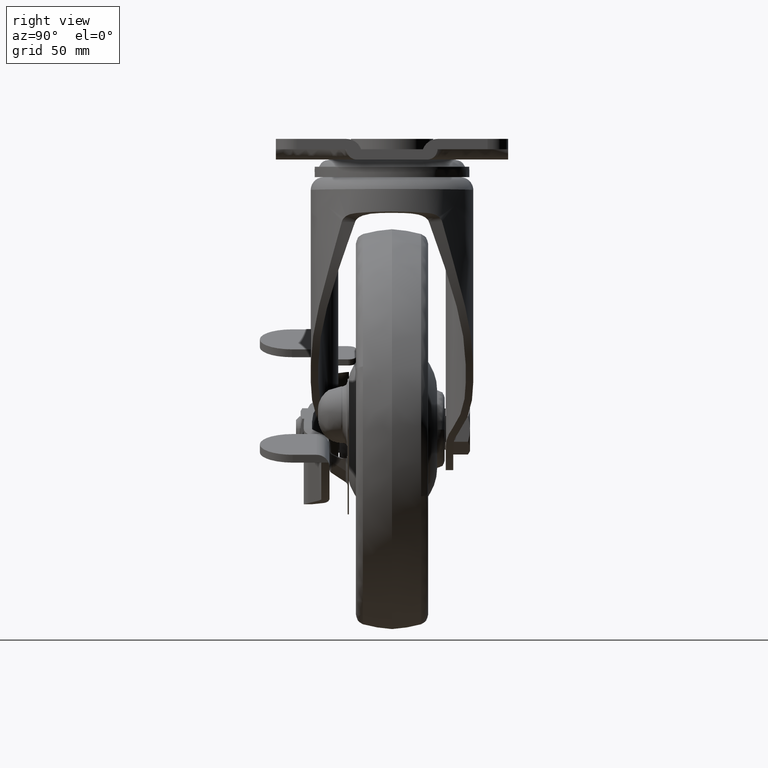
[diagram: clean part render]
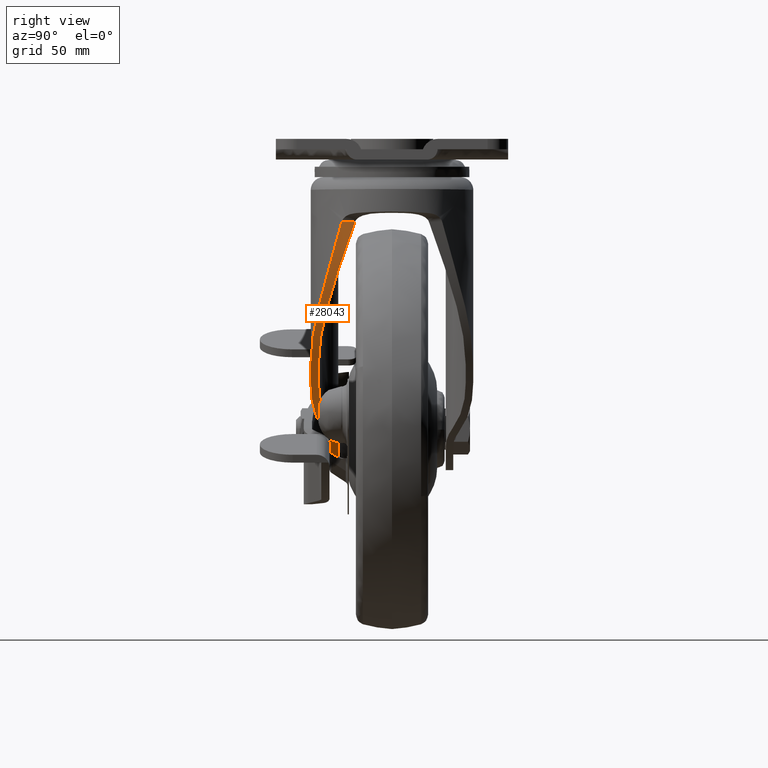
[diagram: same view with one face highlighted and labeled with its STEP entity id]
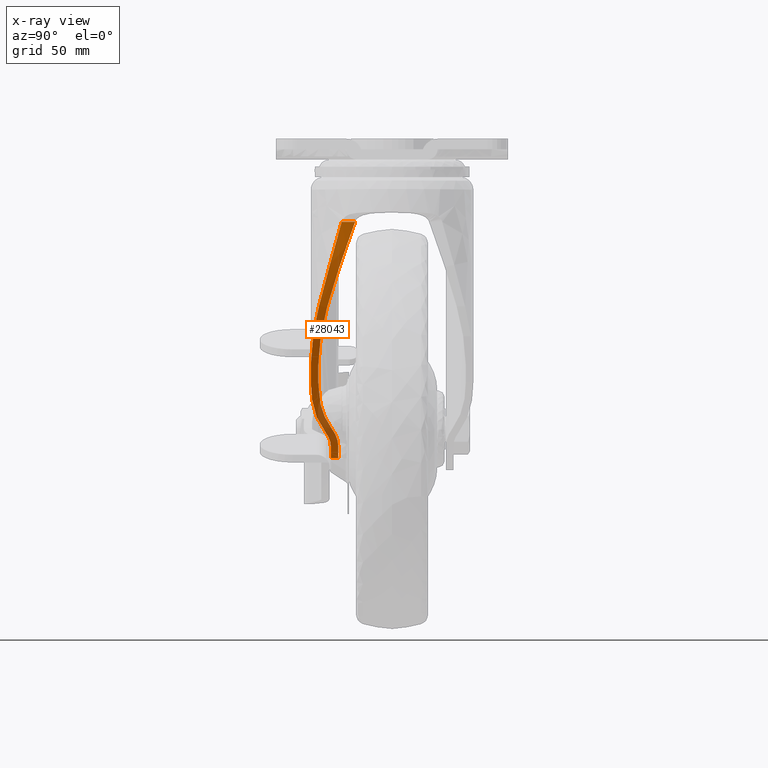
[diagram: x-ray of the same camera — body ghosted, the highlighted face saturated]
A machine part, right view. The second image highlights one B-rep face of the part: STEP entity #28043.
The next image is the same camera in x-ray: the body ghosted, the highlighted face saturated — about 13% of this face is hidden behind the body in this view.
In plain terms, the highlighted face is a freeform B-spline surface patch.
Its self-contained STEP definition (entity closure, byte-faithful):
#25845=CARTESIAN_POINT('',(-31.133920985200000,-20.819345999999900,-123.789671572339400));
#25846=VERTEX_POINT('',#25845);
#25860=CARTESIAN_POINT('',(-31.133920985200000,-23.719345999999799,-123.789671572339400));
#25861=VERTEX_POINT('',#25860);
#25862=CARTESIAN_POINT('',(-31.133920985200000,-20.819345999999900,-123.789671572339400));
#25863=CARTESIAN_POINT('',(-31.133920985200000,-23.719345999999799,-123.789671572339400));
#25864=QUASI_UNIFORM_CURVE('',1,(#25862,#25863),.UNSPECIFIED.,.F.,.U.);
#25865=EDGE_CURVE('',#25846,#25861,#25864,.T.);
#25994=CARTESIAN_POINT('',(-24.827289622573200,-20.819345999999900,-119.255180333829000));
#25995=VERTEX_POINT('',#25994);
#26001=CARTESIAN_POINT('',(-31.133920985200000,-20.819345999999900,-123.789671572339400));
#26002=CARTESIAN_POINT('',(-27.912673078144028,-20.819345999999907,-121.616907005724100));
#26003=CARTESIAN_POINT('',(-24.827289622573229,-20.819345999999900,-119.255180333829000));
#26011=(BOUNDED_CURVE()B_SPLINE_CURVE(2,(#26001,#26002,#26003),.UNSPECIFIED.,.F.,.U.)CURVE()GEOMETRIC_REPRESENTATION_ITEM()QUASI_UNIFORM_CURVE()RATIONAL_B_SPLINE_CURVE((1.0,0.999551427903588,1.0))REPRESENTATION_ITEM(''));
#26012=EDGE_CURVE('',#25846,#25995,#26011,.T.);
#26085=CARTESIAN_POINT('',(-16.323339793232051,-23.484443577011401,-112.149476155190200));
#26086=VERTEX_POINT('',#26085);
#26134=CARTESIAN_POINT('',(-0.000322000000108,-28.600000000000001,-94.213526390015005));
#26135=VERTEX_POINT('',#26134);
#26141=CARTESIAN_POINT('',(-0.000322000000102,-28.600000000000001,-94.213526390015005));
#26142=CARTESIAN_POINT('',(-1.263594402237346,-28.600000000000009,-95.893654138578981));
#26143=CARTESIAN_POINT('',(-2.557951124269482,-28.516660543651629,-97.530075499175766));
#26144=CARTESIAN_POINT('',(-4.541476058862347,-28.245057419634879,-99.918899303720750));
#26145=CARTESIAN_POINT('',(-5.209643515062325,-28.130025522447902,-100.704197981229900));
#26146=CARTESIAN_POINT('',(-6.559081354389048,-27.846329062770121,-102.252690428483800));
#26147=CARTESIAN_POINT('',(-7.240353238970359,-27.677674717627781,-103.015884920947600));
#26148=CARTESIAN_POINT('',(-8.615001494521671,-27.281111181965201,-104.519921626261390));
#26149=CARTESIAN_POINT('',(-9.308380075179267,-27.053217374967819,-105.260764971711690));
#26150=CARTESIAN_POINT('',(-10.706070310430420,-26.531179178127140,-106.719729657031910));
#26151=CARTESIAN_POINT('',(-11.410385386582560,-26.237059074961198,-107.437852843435610));
#26152=CARTESIAN_POINT('',(-12.296720815963671,-25.822410366202678,-108.320970970858800));
#26153=CARTESIAN_POINT('',(-12.474439439469810,-25.737044881376679,-108.497018747318510));
#26154=CARTESIAN_POINT('',(-12.829048746742490,-25.562137140252911,-108.846281365580400));
#26155=CARTESIAN_POINT('',(-13.360097257296360,-25.293344369283101,-109.366306491593510));
#26156=CARTESIAN_POINT('',(-13.888318119109680,-25.004940637953901,-109.874739591935590));
#26157=CARTESIAN_POINT('',(-14.940327268930110,-24.401028925279942,-110.876155685197900));
#26158=CARTESIAN_POINT('',(-15.635779951740879,-23.962336591157939,-111.523181597297100));
#26159=CARTESIAN_POINT('',(-16.323339793232030,-23.484443577011440,-112.149476155190200));
#26160=B_SPLINE_CURVE_WITH_KNOTS('',3,(#26141,#26142,#26143,#26144,#26145,#26146,#26147,#26148,#26149,#26150,#26151,#26152,#26153,#26154,#26155,#26156,#26157,#26158,#26159),.UNSPECIFIED.,.F.,.U.,(4,2,2,2,2,2,2,1,2,4),(0.0,0.250000000000001,0.375000000000001,0.500000000000002,0.625000000000002,0.750000000000002,0.781250000000002,0.812500000000001,0.875000000000001,1.0),.UNSPECIFIED.);
#26161=EDGE_CURVE('',#26135,#26086,#26160,.T.);
#26171=CARTESIAN_POINT('',(4.543606123696280,-28.600000000000001,-87.771468959762004));
#26172=VERTEX_POINT('',#26171);
#26173=CARTESIAN_POINT('',(-0.000322000000066,-28.600000000000001,-94.213526390015005));
#26174=CARTESIAN_POINT('',(2.369591905268129,-28.600000000000005,-91.061586945365548));
#26175=CARTESIAN_POINT('',(4.543606123696254,-28.600000000000001,-87.771468959761989));
#26183=(BOUNDED_CURVE()B_SPLINE_CURVE(2,(#26173,#26174,#26175),.UNSPECIFIED.,.F.,.U.)CURVE()GEOMETRIC_REPRESENTATION_ITEM()QUASI_UNIFORM_CURVE()RATIONAL_B_SPLINE_CURVE((1.0,0.999537951861546,1.0))REPRESENTATION_ITEM(''));
#26184=EDGE_CURVE('',#26135,#26172,#26183,.T.);
#26471=CARTESIAN_POINT('',(-24.827289622573200,-20.819345999999850,-119.255180333829000));
#26472=CARTESIAN_POINT('',(-24.060904776017068,-20.819345999999861,-118.668546108582310));
#26473=CARTESIAN_POINT('',(-23.308631364083791,-20.878095255800901,-118.079154068835090));
#26474=CARTESIAN_POINT('',(-21.830509603218079,-21.104683633942351,-116.894975791436290));
#26475=CARTESIAN_POINT('',(-21.104667925328719,-21.272551666681220,-116.300188533051400));
#26476=CARTESIAN_POINT('',(-20.035189763287882,-21.606046469374899,-115.404589099639000));
#26477=CARTESIAN_POINT('',(-19.681918737229250,-21.730887062438089,-115.105491775260110));
#26478=CARTESIAN_POINT('',(-19.156848456986548,-21.939231586958151,-114.656136817379210));
#26479=CARTESIAN_POINT('',(-18.982448719586451,-22.012284460696691,-114.506074785879310));
#26480=CARTESIAN_POINT('',(-18.636744200337571,-22.164905819796608,-114.207024479294400));
#26481=CARTESIAN_POINT('',(-18.465319825937009,-22.244513233386609,-114.057935627794510));
#26482=CARTESIAN_POINT('',(-17.615292247576409,-22.659118652549580,-113.314776464016900));
#26483=CARTESIAN_POINT('',(-16.957851332654130,-23.043422135986681,-112.727449300332910));
#26484=CARTESIAN_POINT('',(-16.323339793232051,-23.484443577011401,-112.149476155190200));
#26485=B_SPLINE_CURVE_WITH_KNOTS('',3,(#26471,#26472,#26473,#26474,#26475,#26476,#26477,#26478,#26479,#26480,#26481,#26482,#26483,#26484),.UNSPECIFIED.,.F.,.U.,(4,2,2,2,2,2,4),(0.0,0.250000000000001,0.500000000000002,0.625000000000004,0.687500000000004,0.750000000000004,1.0),.UNSPECIFIED.);
#26486=EDGE_CURVE('',#25995,#26086,#26485,.T.);
#27226=CARTESIAN_POINT('',(-17.978470968070301,-25.865733310344751,-113.631385386804000));
#27227=VERTEX_POINT('',#27226);
#27234=CARTESIAN_POINT('',(-24.827289622573200,-23.719345999999799,-119.255180333829000));
#27235=VERTEX_POINT('',#27234);
#27241=CARTESIAN_POINT('',(-17.978470968070301,-25.865733310344751,-113.631385386804000));
#27242=CARTESIAN_POINT('',(-18.492784647303679,-25.508256186822582,-114.083995341896990));
#27243=CARTESIAN_POINT('',(-19.022559665681300,-25.199267492922981,-114.542971615158090));
#27244=CARTESIAN_POINT('',(-20.111470239033171,-24.668192702297059,-115.470372466658300));
#27245=CARTESIAN_POINT('',(-20.670624023783319,-24.446196976782620,-115.938821494689900));
#27246=CARTESIAN_POINT('',(-21.531672322056391,-24.176844275568911,-116.647444046878500));
#27247=CARTESIAN_POINT('',(-21.822421191716991,-24.097719175137041,-116.884654114726000));
#27248=CARTESIAN_POINT('',(-22.264296951103638,-23.995271211268090,-117.241918900456500));
#27249=CARTESIAN_POINT('',(-22.412726532562200,-23.963800168864829,-117.361391567601900));
#27250=CARTESIAN_POINT('',(-22.710409205339449,-23.906565209572399,-117.599914869579100));
#27251=CARTESIAN_POINT('',(-22.859688376036260,-23.880786651096550,-117.718988161734600));
#27252=CARTESIAN_POINT('',(-23.608280678924839,-23.766058119196089,-118.313399598876400));
#27253=CARTESIAN_POINT('',(-24.214166216688920,-23.719345999999849,-118.785861067134410));
#27254=CARTESIAN_POINT('',(-24.827289622573200,-23.719345999999849,-119.255180333829000));
#27255=B_SPLINE_CURVE_WITH_KNOTS('',3,(#27241,#27242,#27243,#27244,#27245,#27246,#27247,#27248,#27249,#27250,#27251,#27252,#27253,#27254),.UNSPECIFIED.,.F.,.U.,(4,2,2,2,2,2,4),(0.0,0.250000000000003,0.500000000000005,0.625000000000006,0.687500000000006,0.750000000000006,1.0),.UNSPECIFIED.);
#27256=EDGE_CURVE('',#27227,#27235,#27255,.T.);
#27472=CARTESIAN_POINT('',(4.543606123696280,-31.500000000000000,-87.771468959762004));
#27473=VERTEX_POINT('',#27472);
#27479=CARTESIAN_POINT('',(25.052705313444751,-19.477051744839098,-32.169450416007962));
#27480=VERTEX_POINT('',#27479);
#27481=CARTESIAN_POINT('',(4.543606123696280,-31.500000000000000,-87.771468959762004));
#27482=CARTESIAN_POINT('',(5.254948055794428,-31.500000000000050,-86.694935575172522));
#27483=CARTESIAN_POINT('',(5.946996137642410,-31.470151272685090,-85.612686237214106));
#27484=CARTESIAN_POINT('',(7.293878548608634,-31.358416921511090,-83.436366480046303));
#27485=CARTESIAN_POINT('',(7.948710734689172,-31.276516135703460,-82.342297130092732));
#27486=CARTESIAN_POINT('',(9.859010995682676,-30.962167178059019,-79.041846704472064));
#27487=CARTESIAN_POINT('',(11.060375987853440,-30.661391463966570,-76.817225716122280));
#27488=CARTESIAN_POINT('',(13.324804151454730,-29.917107455997851,-72.316764392092296));
#27489=CARTESIAN_POINT('',(14.387844095891470,-29.473407729148288,-70.040939544121528));
#27490=CARTESIAN_POINT('',(15.881106934831600,-28.724120881111052,-66.586694588171483));
#27491=CARTESIAN_POINT('',(16.361959133330100,-28.460356120512849,-65.428524998824344));
#27492=CARTESIAN_POINT('',(17.058030386481480,-28.046371624230780,-63.680830933204177));
#27493=CARTESIAN_POINT('',(17.285906696589169,-27.905274191218449,-63.096359613628437));
#27494=CARTESIAN_POINT('',(17.731853022540619,-27.618347520823779,-61.927675410577400));
#27495=CARTESIAN_POINT('',(17.950112032874291,-27.472410080661231,-61.342997616331388));
#27496=CARTESIAN_POINT('',(19.018222985539829,-26.731558320405981,-58.417698916044991));
#27497=CARTESIAN_POINT('',(19.798655850533901,-26.103202040626130,-56.071363004832342));
#27498=CARTESIAN_POINT('',(21.219058895460751,-24.804630459047921,-51.360468664349320));
#27499=CARTESIAN_POINT('',(21.859013125357311,-24.134278544429371,-48.995942187824483));
#27500=CARTESIAN_POINT('',(23.002992555598219,-22.781924938504350,-44.241808984430691));
#27501=CARTESIAN_POINT('',(23.507018357109779,-22.099769629806790,-41.852242017633181));
#27502=CARTESIAN_POINT('',(24.162394744285798,-21.094407998270480,-38.242481297897633));
#27503=CARTESIAN_POINT('',(24.364054349184752,-20.762321668979940,-37.034973744409903));
#27504=CARTESIAN_POINT('',(24.733703417613981,-20.109579564323390,-34.610052331839157));
#27505=CARTESIAN_POINT('',(24.901693844666610,-19.788918389211592,-33.392640065066971));
#27506=CARTESIAN_POINT('',(25.052705313444800,-19.477051744839159,-32.169450416007940));
#27507=B_SPLINE_CURVE_WITH_KNOTS('',3,(#27481,#27482,#27483,#27484,#27485,#27486,#27487,#27488,#27489,#27490,#27491,#27492,#27493,#27494,#27495,#27496,#27497,#27498,#27499,#27500,#27501,#27502,#27503,#27504,#27505,#27506),.UNSPECIFIED.,.F.,.U.,(4,2,2,2,2,2,2,2,2,2,2,2,4),(0.0,0.062500000000001,0.125000000000001,0.250000000000002,0.375000000000004,0.437500000000004,0.468750000000004,0.500000000000003,0.625000000000003,0.750000000000002,0.875000000000001,0.937500000000001,1.0),.UNSPECIFIED.);
#27508=EDGE_CURVE('',#27473,#27480,#27507,.T.);
#27663=CARTESIAN_POINT('',(-0.000322000000094,-31.500000000000000,-94.213526390015005));
#27664=VERTEX_POINT('',#27663);
#27665=CARTESIAN_POINT('',(-0.000322000000083,-31.500000000000000,-94.213526390015005));
#27666=CARTESIAN_POINT('',(-0.685699272341282,-31.500000000000011,-95.125064844790231));
#27667=CARTESIAN_POINT('',(-1.383895911100618,-31.477670679269121,-96.028625073552988));
#27668=CARTESIAN_POINT('',(-2.450670682933491,-31.406572534615201,-97.372015111239804));
#27669=CARTESIAN_POINT('',(-2.809509633950556,-31.376598485103099,-97.817819906663019));
#27670=CARTESIAN_POINT('',(-3.352677439604157,-31.321635173168819,-98.483540080254144));
#27671=CARTESIAN_POINT('',(-3.534681226847432,-31.301630195691271,-98.705104854614206));
#27672=CARTESIAN_POINT('',(-3.899527492338245,-31.258278016882720,-99.146268612361553));
#27673=CARTESIAN_POINT('',(-4.082380974978027,-31.234932536155039,-99.365883759838141));
#27674=CARTESIAN_POINT('',(-4.998741408137085,-31.109697196115970,-100.459128321070910));
#27675=CARTESIAN_POINT('',(-5.738532619517497,-30.982311346188830,-101.318268502215010));
#27676=CARTESIAN_POINT('',(-7.229940605293851,-30.668604342032161,-103.005635141788700));
#27677=CARTESIAN_POINT('',(-7.981559482129178,-30.482291751777669,-103.833862444017000));
#27678=CARTESIAN_POINT('',(-9.494880002719105,-30.045359550513609,-105.459278960937400));
#27679=CARTESIAN_POINT('',(-10.256584609576180,-29.794752322812549,-106.256469469243200));
#27680=CARTESIAN_POINT('',(-11.788093494302510,-29.222707470260929,-107.819534046998900));
#27681=CARTESIAN_POINT('',(-12.557902159319520,-28.901288609521622,-108.585410174754600));
#27682=CARTESIAN_POINT('',(-14.103288069490761,-28.179489895869150,-110.085364811374700));
#27683=CARTESIAN_POINT('',(-14.878872176722370,-27.779140001777101,-110.819446742555400));
#27684=CARTESIAN_POINT('',(-15.850180813919181,-27.222823011974810,-111.716698495434300));
#27685=CARTESIAN_POINT('',(-16.141708182982889,-27.051726334061090,-111.984346442709390));
#27686=CARTESIAN_POINT('',(-16.433379718943812,-26.874107654227569,-112.249685279006800));
#27687=CARTESIAN_POINT('',(-16.627852617081849,-26.754219737887279,-112.426062522421600));
#27688=CARTESIAN_POINT('',(-16.725161815424482,-26.693499651887311,-112.514047522190690));
#27689=CARTESIAN_POINT('',(-17.210670332141479,-26.386833052811522,-112.951704019101300));
#27690=CARTESIAN_POINT('',(-17.596173038162711,-26.131452014376780,-113.294952863473990));
#27691=CARTESIAN_POINT('',(-17.978470968070329,-25.865733310344709,-113.631385386803900));
#27692=B_SPLINE_CURVE_WITH_KNOTS('',3,(#27665,#27666,#27667,#27668,#27669,#27670,#27671,#27672,#27673,#27674,#27675,#27676,#27677,#27678,#27679,#27680,#27681,#27682,#27683,#27684,#27685,#27686,#27687,#27688,#27689,#27690,#27691),.UNSPECIFIED.,.F.,.U.,(4,2,2,2,2,2,2,2,2,2,1,2,2,4),(0.0,0.125000000000001,0.187500000000001,0.218750000000002,0.250000000000002,0.375000000000001,0.500000000000001,0.625000000000001,0.750000000000000,0.875000000000000,0.906250000000000,0.921875000000000,0.937499999999999,1.0),.UNSPECIFIED.);
#27693=EDGE_CURVE('',#27664,#27227,#27692,.T.);
#27717=CARTESIAN_POINT('',(-31.133920985200000,-23.719345999999799,-123.789671572339400));
#27718=CARTESIAN_POINT('',(-27.912673078144028,-23.719345999999803,-121.616907005724100));
#27719=CARTESIAN_POINT('',(-24.827289622573229,-23.719345999999799,-119.255180333829000));
#27727=(BOUNDED_CURVE()B_SPLINE_CURVE(2,(#27717,#27718,#27719),.UNSPECIFIED.,.F.,.U.)CURVE()GEOMETRIC_REPRESENTATION_ITEM()QUASI_UNIFORM_CURVE()RATIONAL_B_SPLINE_CURVE((1.0,0.999551427903588,1.0))REPRESENTATION_ITEM(''));
#27728=EDGE_CURVE('',#25861,#27235,#27727,.T.);
#27858=CARTESIAN_POINT('',(-0.000322000000066,-31.500000000000000,-94.213526390015005));
#27859=CARTESIAN_POINT('',(2.369591905268129,-31.500000000000004,-91.061586945365548));
#27860=CARTESIAN_POINT('',(4.543606123696254,-31.500000000000000,-87.771468959761989));
#27868=(BOUNDED_CURVE()B_SPLINE_CURVE(2,(#27858,#27859,#27860),.UNSPECIFIED.,.F.,.U.)CURVE()GEOMETRIC_REPRESENTATION_ITEM()QUASI_UNIFORM_CURVE()RATIONAL_B_SPLINE_CURVE((1.0,0.999537951861546,1.0))REPRESENTATION_ITEM(''));
#27869=EDGE_CURVE('',#27664,#27473,#27868,.T.);
#27977=CARTESIAN_POINT('',(25.445922327807711,-13.890612544537710,-28.572376209019200));
#27978=CARTESIAN_POINT('',(25.445922327807711,-31.940234686386560,-28.572376209019200));
#27979=CARTESIAN_POINT('',(19.326575642422551,-13.890612544537703,-92.839388061329430));
#27980=CARTESIAN_POINT('',(19.326575642422551,-31.940234686386564,-92.839388061329430));
#27981=CARTESIAN_POINT('',(-35.640945284313844,-13.890612544537705,-126.695951080184540));
#27982=CARTESIAN_POINT('',(-35.640945284313844,-31.940234686386564,-126.695951080184540));
#27990=(BOUNDED_SURFACE()B_SPLINE_SURFACE(1,2,((#27977,#27979,#27981),(#27978,#27980,#27982)),.UNSPECIFIED.,.F.,.F.,.U.)B_SPLINE_SURFACE_WITH_KNOTS((2,2),(3,3),(0.0,18.049622141848861),(0.0,121.975839422211390),.UNSPECIFIED.)GEOMETRIC_REPRESENTATION_ITEM()RATIONAL_B_SPLINE_SURFACE(((1.0,0.893242567011920,0.995619660899587),(1.0,0.893242567011920,0.995619660899587)))REPRESENTATION_ITEM('')SURFACE());
#27991=ORIENTED_EDGE('',*,*,#26012,.T.);
#27992=ORIENTED_EDGE('',*,*,#26486,.T.);
#27993=ORIENTED_EDGE('',*,*,#26161,.F.);
#27994=ORIENTED_EDGE('',*,*,#26184,.T.);
#27995=CARTESIAN_POINT('',(25.052705313444651,-14.320109799548980,-32.169450416007962));
#27996=VERTEX_POINT('',#27995);
#27997=CARTESIAN_POINT('',(4.543606123696280,-28.600000000000001,-87.771468959762004));
#27998=CARTESIAN_POINT('',(5.260702918335048,-28.600000000000030,-86.686226259203409));
#27999=CARTESIAN_POINT('',(5.957951593890088,-28.566602784630032,-85.595540961979665));
#28000=CARTESIAN_POINT('',(7.314301415774443,-28.441647818957559,-83.402796998757594));
#28001=CARTESIAN_POINT('',(7.973399711076444,-28.350069911660249,-82.300739876984764));
#28002=CARTESIAN_POINT('',(9.254654416026719,-28.115601069113591,-80.084853122372465));
#28003=CARTESIAN_POINT('',(9.876808923116240,-27.972696764453410,-78.971024507638987));
#28004=CARTESIAN_POINT('',(11.085116646012080,-27.641186140625049,-76.731242656647339));
#28005=CARTESIAN_POINT('',(11.671268557547680,-27.452570525541059,-75.605290138131565));
#28006=CARTESIAN_POINT('',(13.376806030596731,-26.825228499006329,-72.208750131971357));
#28007=CARTESIAN_POINT('',(14.443352148643090,-26.325233302463669,-69.919487605905331));
#28008=CARTESIAN_POINT('',(15.690715360708900,-25.616993356615140,-67.025115340644092));
#28009=CARTESIAN_POINT('',(15.935890739169270,-25.471164491922480,-66.444600666869562));
#28010=CARTESIAN_POINT('',(16.297232530722049,-25.246456601549440,-65.571334901261423));
#28011=CARTESIAN_POINT('',(16.416631327025328,-25.170544058159791,-65.279774125619099));
#28012=CARTESIAN_POINT('',(16.652888399070520,-25.017047705224819,-64.696821352239070));
#28013=CARTESIAN_POINT('',(16.769797027640760,-24.939433345053668,-64.405309053565645));
#28014=CARTESIAN_POINT('',(17.348302348881031,-24.547178493394519,-62.947535766663080));
#28015=CARTESIAN_POINT('',(17.791796655291598,-24.220004756921369,-61.780637092406003));
#28016=CARTESIAN_POINT('',(19.066442981973701,-23.203638346596769,-58.276726148847118));
#28017=CARTESIAN_POINT('',(19.841864015167889,-22.479678799040560,-55.936500973560349));
#28018=CARTESIAN_POINT('',(21.252227960586030,-20.963688164085521,-51.241549690805243));
#28019=CARTESIAN_POINT('',(21.887147746990131,-20.171509761683499,-48.886865739120182));
#28020=CARTESIAN_POINT('',(23.021530658815159,-18.542661979676950,-44.156594584283113));
#28021=CARTESIAN_POINT('',(23.520988494321681,-17.705773109592389,-41.781077826582511));
#28022=CARTESIAN_POINT('',(24.170339349573830,-16.438015004202690,-38.195731198217160));
#28023=CARTESIAN_POINT('',(24.370129932369458,-16.013410048860852,-36.996914758119772));
#28024=CARTESIAN_POINT('',(24.736424058078271,-15.164821215660799,-34.590363880633333));
#28025=CARTESIAN_POINT('',(24.902928845856689,-14.740816519984421,-33.382636581989743));
#28026=CARTESIAN_POINT('',(25.052705313444701,-14.320109799549130,-32.169450416007969));
#28027=B_SPLINE_CURVE_WITH_KNOTS('',3,(#27997,#27998,#27999,#28000,#28001,#28002,#28003,#28004,#28005,#28006,#28007,#28008,#28009,#28010,#28011,#28012,#28013,#28014,#28015,#28016,#28017,#28018,#28019,#28020,#28021,#28022,#28023,#28024,#28025,#28026),.UNSPECIFIED.,.F.,.U.,(4,2,2,2,2,2,2,2,2,2,2,2,2,2,4),(0.0,0.062500000000000,0.125000000000001,0.187500000000001,0.250000000000002,0.375000000000003,0.406250000000003,0.421875000000004,0.437500000000004,0.500000000000003,0.625000000000002,0.750000000000002,0.875000000000001,0.937500000000000,1.0),.UNSPECIFIED.);
#28028=EDGE_CURVE('',#26172,#27996,#28027,.T.);
#28029=ORIENTED_EDGE('',*,*,#28028,.T.);
#28030=CARTESIAN_POINT('',(25.052705313444651,-14.320109799548980,-32.169450416007962));
#28031=CARTESIAN_POINT('',(25.052705313444751,-19.477051744839098,-32.169450416007962));
#28032=QUASI_UNIFORM_CURVE('',1,(#28030,#28031),.UNSPECIFIED.,.F.,.U.);
#28033=EDGE_CURVE('',#27996,#27480,#28032,.T.);
#28034=ORIENTED_EDGE('',*,*,#28033,.T.);
#28035=ORIENTED_EDGE('',*,*,#27508,.F.);
#28036=ORIENTED_EDGE('',*,*,#27869,.F.);
#28037=ORIENTED_EDGE('',*,*,#27693,.T.);
#28038=ORIENTED_EDGE('',*,*,#27256,.T.);
#28039=ORIENTED_EDGE('',*,*,#27728,.F.);
#28040=ORIENTED_EDGE('',*,*,#25865,.F.);
#28041=EDGE_LOOP('',(#27991,#27992,#27993,#27994,#28029,#28034,#28035,#28036,#28037,#28038,#28039,#28040));
#28042=FACE_OUTER_BOUND('',#28041,.T.);
#28043=ADVANCED_FACE('',(#28042),#27990,.T.);